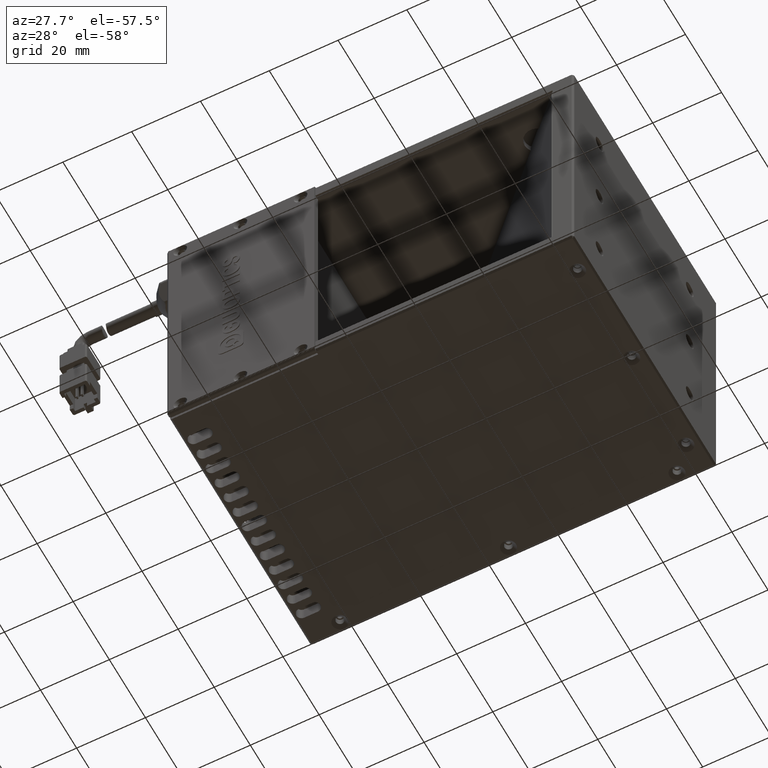
[diagram: clean part render]
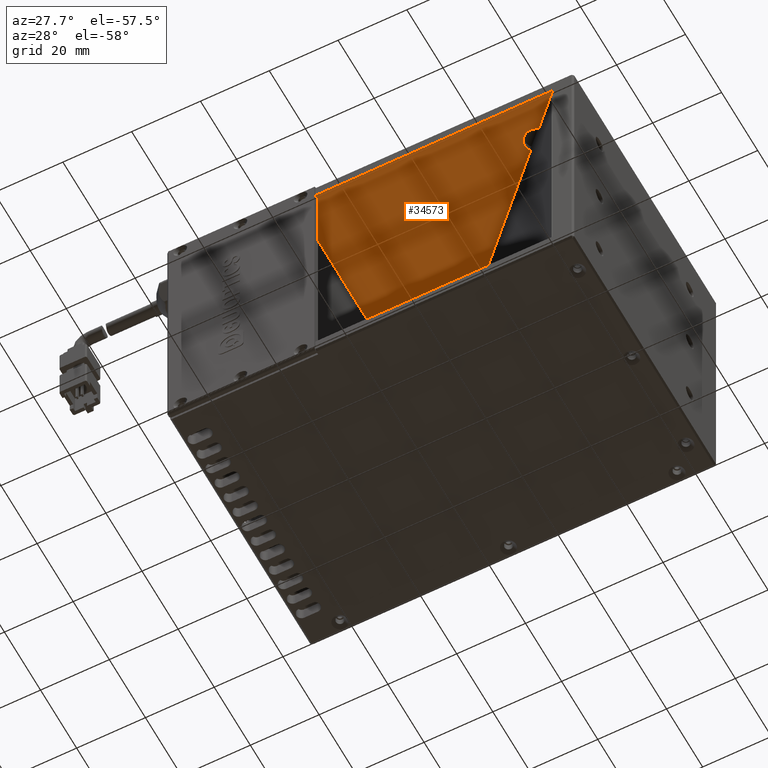
[diagram: same view with one face highlighted and labeled with its STEP entity id]
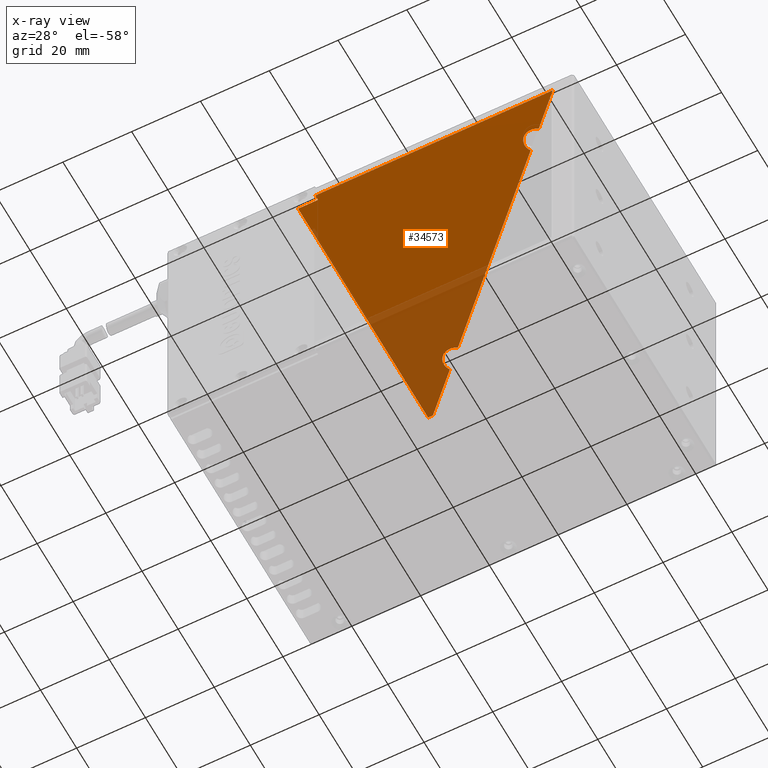
[diagram: x-ray of the same camera — body ghosted, the highlighted face saturated]
A machine part, auxiliary view. The second image highlights one B-rep face of the part: STEP entity #34573.
The next image is the same camera in x-ray: the body ghosted, the highlighted face saturated — about 22% of this face is hidden behind the body in this view.
In plain terms, the highlighted planar face has unit normal (0, 0, -1).
Its self-contained STEP definition (entity closure, byte-faithful):
#145 = DIRECTION ( 'NONE',  ( 0.7071067811865463500, -0.7071067811865487900, 0.0000000000000000000 ) ) ;
#1209 = EDGE_CURVE ( 'NONE', #36377, #43178, #50090, .T. ) ;
#2421 = CARTESIAN_POINT ( 'NONE',  ( -29.96055359734605600, -15.91808924827790500, 74.00000000000955000 ) ) ;
#2569 = ORIENTED_EDGE ( 'NONE', *, *, #21241, .F. ) ;
#3975 = FACE_OUTER_BOUND ( 'NONE', #14317, .T. ) ;
#4019 = VECTOR ( 'NONE', #4716, 1000.000000000000000 ) ;
#4446 = VERTEX_POINT ( 'NONE', #36839 ) ;
#4716 = DIRECTION ( 'NONE',  ( -0.0000000000000000000, -1.000000000000000000, -0.0000000000000000000 ) ) ;
#4910 = LINE ( 'NONE', #6004, #32403 ) ;
#4923 = DIRECTION ( 'NONE',  ( 1.000000000000000000, -0.0000000000000000000, 0.0000000000000000000 ) ) ;
#5382 = ORIENTED_EDGE ( 'NONE', *, *, #23722, .T. ) ;
#5976 = CIRCLE ( 'NONE', #9075, 3.499999999999996000 ) ;
#6004 = CARTESIAN_POINT ( 'NONE',  ( -29.96055359734605600, -15.91808924827790500, 74.00000000000955000 ) ) ;
#6331 = CARTESIAN_POINT ( 'NONE',  ( 30.41757889444970400, -8.715460555616189700, 74.00000000000955000 ) ) ;
#6555 = VECTOR ( 'NONE', #4923, 1000.000000000000000 ) ;
#7107 = LINE ( 'NONE', #9216, #21681 ) ;
#9075 = AXIS2_PLACEMENT_3D ( 'NONE', #29977, #68431, #35480 ) ;
#9216 = CARTESIAN_POINT ( 'NONE',  ( -34.37979241288832100, 56.08191075172208400, 74.00000000000955000 ) ) ;
#11152 = CARTESIAN_POINT ( 'NONE',  ( 56.13397065926000800, -32.97135165485006100, 74.00000000000955000 ) ) ;
#11641 = VERTEX_POINT ( 'NONE', #29844 ) ;
#12859 = CARTESIAN_POINT ( 'NONE',  ( -19.07989578860851800, 40.78201412744220300, 74.00000000000955000 ) ) ;
#13518 = DIRECTION ( 'NONE',  ( 1.000000000000000000, 1.224646799147353900E-016, 0.0000000000000000000 ) ) ;
#13688 = EDGE_CURVE ( 'NONE', #4446, #15079, #7107, .T. ) ;
#14317 = EDGE_LOOP ( 'NONE', ( #18750, #47220, #16319, #61201, #68843, #32668, #43205, #2569, #5382, #20100, #64910, #49105, #64851 ) ) ;
#15079 = VERTEX_POINT ( 'NONE', #36806 ) ;
#16224 = VERTEX_POINT ( 'NONE', #53659 ) ;
#16319 = ORIENTED_EDGE ( 'NONE', *, *, #30725, .T. ) ;
#16430 = PLANE ( 'NONE',  #53819 ) ;
#16661 = DIRECTION ( 'NONE',  ( -1.000000000000000000, 0.0000000000000000000, -0.0000000000000000000 ) ) ;
#17012 = LINE ( 'NONE', #2421, #44519 ) ;
#18750 = ORIENTED_EDGE ( 'NONE', *, *, #38887, .T. ) ;
#19801 = CARTESIAN_POINT ( 'NONE',  ( -35.76055359734603900, 56.08191075172208400, 74.00000000000955000 ) ) ;
#20100 = ORIENTED_EDGE ( 'NONE', *, *, #38601, .T. ) ;
#20161 = EDGE_CURVE ( 'NONE', #44929, #11641, #5976, .T. ) ;
#20346 = VECTOR ( 'NONE', #34039, 1000.000000000000000 ) ;
#20857 = VECTOR ( 'NONE', #145, 999.9999999999998900 ) ;
#21130 = LINE ( 'NONE', #70771, #6555 ) ;
#21241 = EDGE_CURVE ( 'NONE', #23839, #16224, #17012, .T. ) ;
#21423 = CARTESIAN_POINT ( 'NONE',  ( 28.36236201358240500, -5.882426215443440600, 74.00000000000955000 ) ) ;
#21552 = EDGE_CURVE ( 'NONE', #47157, #16224, #4910, .T. ) ;
#21681 = VECTOR ( 'NONE', #42093, 1000.000000000000100 ) ;
#22139 = CARTESIAN_POINT ( 'NONE',  ( -24.63511266947592700, 43.61504846761488400, 74.00000000000955000 ) ) ;
#22295 = EDGE_CURVE ( 'NONE', #30813, #69776, #25265, .T. ) ;
#23722 = EDGE_CURVE ( 'NONE', #23839, #30272, #44848, .T. ) ;
#23839 = VERTEX_POINT ( 'NONE', #43779 ) ;
#24110 = DIRECTION ( 'NONE',  ( 0.0000000000000000000, 0.0000000000000000000, 1.000000000000000000 ) ) ;
#25265 = CIRCLE ( 'NONE', #58504, 3.500000000000003100 ) ;
#26928 = DIRECTION ( 'NONE',  ( -1.000000000000000000, 0.0000000000000000000, 0.0000000000000000000 ) ) ;
#28284 = CARTESIAN_POINT ( 'NONE',  ( -19.07989578860850300, 40.78201412744220300, 74.00000000000955000 ) ) ;
#28926 = DIRECTION ( 'NONE',  ( 0.0000000000000000000, 0.0000000000000000000, 1.000000000000000000 ) ) ;
#29778 = EDGE_CURVE ( 'NONE', #43178, #48032, #49593, .T. ) ;
#29844 = CARTESIAN_POINT ( 'NONE',  ( 24.86236201358240900, -5.882426215443440600, 74.00000000000955000 ) ) ;
#29977 = CARTESIAN_POINT ( 'NONE',  ( 28.36236201358240500, -5.882426215443440600, 74.00000000000955000 ) ) ;
#30211 = VECTOR ( 'NONE', #69724, 1000.000000000000000 ) ;
#30272 = VERTEX_POINT ( 'NONE', #19801 ) ;
#30725 = EDGE_CURVE ( 'NONE', #11641, #36377, #46678, .T. ) ;
#30813 = VERTEX_POINT ( 'NONE', #22139 ) ;
#32403 = VECTOR ( 'NONE', #66357, 1000.000000000000000 ) ;
#32668 = ORIENTED_EDGE ( 'NONE', *, *, #46949, .T. ) ;
#34039 = DIRECTION ( 'NONE',  ( -1.000000000000000000, 0.0000000000000000000, -0.0000000000000000000 ) ) ;
#34522 = CARTESIAN_POINT ( 'NONE',  ( 39.03844640265395300, -17.33632806382047100, 74.00000000000955000 ) ) ;
#34573 = ADVANCED_FACE ( 'NONE', ( #3975 ), #16430, .T. ) ;
#34969 = LINE ( 'NONE', #55926, #20346 ) ;
#35480 = DIRECTION ( 'NONE',  ( -1.000000000000000000, 2.725994033677842700E-015, 0.0000000000000000000 ) ) ;
#36286 = AXIS2_PLACEMENT_3D ( 'NONE', #21423, #59845, #26928 ) ;
#36377 = VERTEX_POINT ( 'NONE', #60743 ) ;
#36806 = CARTESIAN_POINT ( 'NONE',  ( -23.96814700964859000, 45.67026534848231700, 74.00000000000955000 ) ) ;
#36839 = CARTESIAN_POINT ( 'NONE',  ( -34.37979241288830700, 56.08191075172208400, 74.00000000000955000 ) ) ;
#38601 = EDGE_CURVE ( 'NONE', #30272, #4446, #21130, .T. ) ;
#38887 = EDGE_CURVE ( 'NONE', #69776, #44929, #65797, .T. ) ;
#40674 = DIRECTION ( 'NONE',  ( 0.7071067811865463500, -0.7071067811865487900, 0.0000000000000000000 ) ) ;
#42093 = DIRECTION ( 'NONE',  ( 0.7071067811865452400, -0.7071067811865499000, 0.0000000000000000000 ) ) ;
#43178 = VERTEX_POINT ( 'NONE', #34522 ) ;
#43205 = ORIENTED_EDGE ( 'NONE', *, *, #21552, .T. ) ;
#43779 = CARTESIAN_POINT ( 'NONE',  ( -35.76055359734603900, -15.91808924827790500, 74.00000000000955000 ) ) ;
#43994 = EDGE_CURVE ( 'NONE', #15079, #30813, #57888, .T. ) ;
#44519 = VECTOR ( 'NONE', #13518, 1000.000000000000000 ) ;
#44848 = LINE ( 'NONE', #64237, #30211 ) ;
#44929 = VERTEX_POINT ( 'NONE', #61456 ) ;
#46678 = CIRCLE ( 'NONE', #36286, 3.499999999999996000 ) ;
#46949 = EDGE_CURVE ( 'NONE', #48032, #47157, #34969, .T. ) ;
#47157 = VERTEX_POINT ( 'NONE', #68401 ) ;
#47220 = ORIENTED_EDGE ( 'NONE', *, *, #20161, .T. ) ;
#48032 = VERTEX_POINT ( 'NONE', #54069 ) ;
#48683 = CARTESIAN_POINT ( 'NONE',  ( 39.03844640265395300, -32.97135165485006100, 74.00000000000955000 ) ) ;
#49105 = ORIENTED_EDGE ( 'NONE', *, *, #43994, .T. ) ;
#49536 = DIRECTION ( 'NONE',  ( 0.0000000000000000000, 0.0000000000000000000, -1.000000000000000000 ) ) ;
#49593 = LINE ( 'NONE', #48683, #4019 ) ;
#50090 = LINE ( 'NONE', #6331, #20857 ) ;
#53659 = CARTESIAN_POINT ( 'NONE',  ( -29.96055359734605600, -15.91808924827790500, 74.00000000000955000 ) ) ;
#53819 = AXIS2_PLACEMENT_3D ( 'NONE', #11152, #49536, #16661 ) ;
#54069 = CARTESIAN_POINT ( 'NONE',  ( 39.03844640265395300, -17.41808924827789400, 74.00000000000955000 ) ) ;
#55926 = CARTESIAN_POINT ( 'NONE',  ( 56.13397065926000800, -17.41808924827789400, 74.00000000000955000 ) ) ;
#57060 = CARTESIAN_POINT ( 'NONE',  ( -21.13511266947592300, 43.61504846761488400, 74.00000000000955000 ) ) ;
#57888 = CIRCLE ( 'NONE', #67937, 3.500000000000003100 ) ;
#58504 = AXIS2_PLACEMENT_3D ( 'NONE', #57060, #24110, #62552 ) ;
#58846 = VECTOR ( 'NONE', #40674, 1000.000000000000000 ) ;
#59845 = DIRECTION ( 'NONE',  ( 0.0000000000000000000, 0.0000000000000000000, 1.000000000000000000 ) ) ;
#60743 = CARTESIAN_POINT ( 'NONE',  ( 30.41757889444970800, -8.715460555616187900, 74.00000000000955000 ) ) ;
#61201 = ORIENTED_EDGE ( 'NONE', *, *, #1209, .T. ) ;
#61456 = CARTESIAN_POINT ( 'NONE',  ( 25.52932767340965400, -3.827209334576128900, 74.00000000000955000 ) ) ;
#61816 = CARTESIAN_POINT ( 'NONE',  ( -21.13511266947592300, 43.61504846761488400, 74.00000000000955000 ) ) ;
#62552 = DIRECTION ( 'NONE',  ( -1.000000000000000000, 0.0000000000000000000, 0.0000000000000000000 ) ) ;
#64237 = CARTESIAN_POINT ( 'NONE',  ( -35.76055359734603900, -32.97135165485006100, 74.00000000000955000 ) ) ;
#64851 = ORIENTED_EDGE ( 'NONE', *, *, #22295, .T. ) ;
#64910 = ORIENTED_EDGE ( 'NONE', *, *, #13688, .T. ) ;
#65797 = LINE ( 'NONE', #12859, #58846 ) ;
#66357 = DIRECTION ( 'NONE',  ( -1.224646799147353500E-016, 1.000000000000000000, 0.0000000000000000000 ) ) ;
#67402 = DIRECTION ( 'NONE',  ( -1.000000000000000000, 1.982541115402063300E-015, 0.0000000000000000000 ) ) ;
#67937 = AXIS2_PLACEMENT_3D ( 'NONE', #61816, #28926, #67402 ) ;
#68401 = CARTESIAN_POINT ( 'NONE',  ( -29.96055359734605600, -17.41808924827790200, 74.00000000000955000 ) ) ;
#68431 = DIRECTION ( 'NONE',  ( 0.0000000000000000000, 0.0000000000000000000, 1.000000000000000000 ) ) ;
#68843 = ORIENTED_EDGE ( 'NONE', *, *, #29778, .T. ) ;
#69724 = DIRECTION ( 'NONE',  ( 0.0000000000000000000, 1.000000000000000000, 0.0000000000000000000 ) ) ;
#69776 = VERTEX_POINT ( 'NONE', #28284 ) ;
#70771 = CARTESIAN_POINT ( 'NONE',  ( 56.13397065926000800, 56.08191075172208400, 74.00000000000955000 ) ) ;